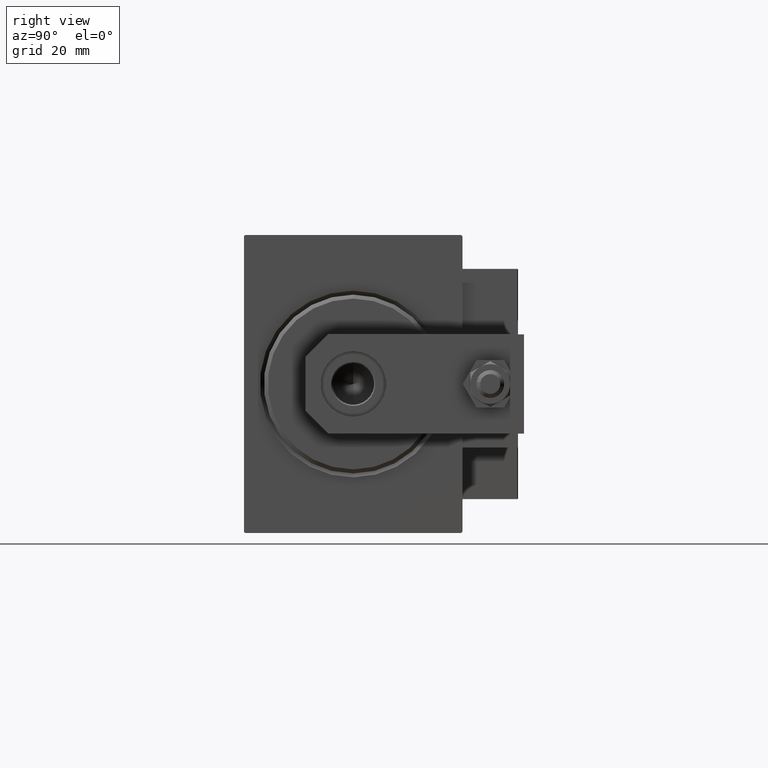
[diagram: clean part render]
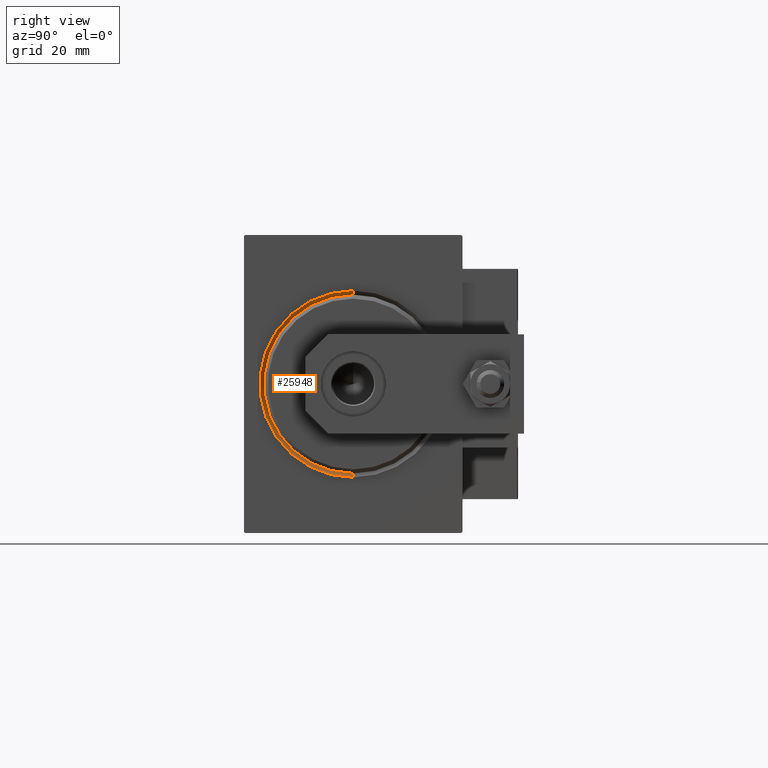
[diagram: same view with one face highlighted and labeled with its STEP entity id]
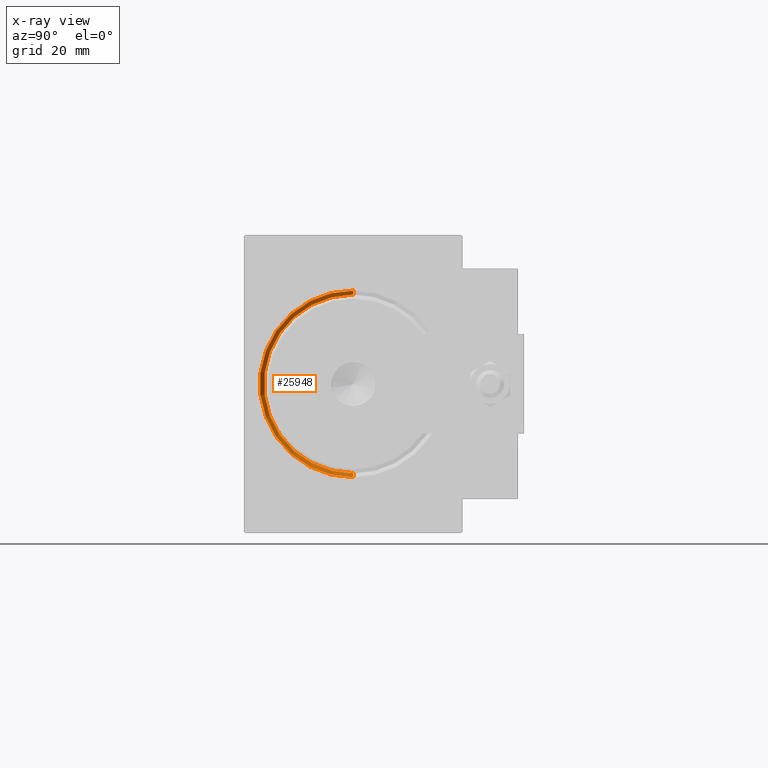
[diagram: x-ray of the same camera — body ghosted, the highlighted face saturated]
A machine part, right view. The second image highlights one B-rep face of the part: STEP entity #25948.
The next image is the same camera in x-ray: the body ghosted, the highlighted face saturated — about 0% of this face is hidden behind the body in this view.
In plain terms, the highlighted conical surface has half-angle 45 deg.
Its self-contained STEP definition (entity closure, byte-faithful):
#1055 = ORIENTED_EDGE ( 'NONE', *, *, #19250, .F. ) ;
#5131 = VERTEX_POINT ( 'NONE', #8692 ) ;
#5615 = VERTEX_POINT ( 'NONE', #48613 ) ;
#7937 = AXIS2_PLACEMENT_3D ( 'NONE', #34377, #41700, #26818 ) ;
#8201 = DIRECTION ( 'NONE',  ( -0.7071067811865474617, 8.659560562354932858E-17, -0.7071067811865474617 ) ) ;
#8692 = CARTESIAN_POINT ( 'NONE',  ( 0.000000000000000000, 0.000000000000000000, 23.50000000000000355 ) ) ;
#9246 = DIRECTION ( 'NONE',  ( 0.000000000000000000, 0.000000000000000000, 1.000000000000000000 ) ) ;
#9625 = VECTOR ( 'NONE', #8201, 1000.000000000000114 ) ;
#13294 = FACE_OUTER_BOUND ( 'NONE', #19712, .T. ) ;
#16115 = DIRECTION ( 'NONE',  ( 0.000000000000000000, 0.000000000000000000, -1.000000000000000000 ) ) ;
#16272 = DIRECTION ( 'NONE',  ( -0.7071067811865474617, 0.000000000000000000, 0.7071067811865474617 ) ) ;
#16606 = CARTESIAN_POINT ( 'NONE',  ( 0.000000000000000000, 0.000000000000000000, 0.000000000000000000 ) ) ;
#16663 = CIRCLE ( 'NONE', #25495, 23.50000000000000355 ) ;
#19250 = EDGE_CURVE ( 'NONE', #5615, #34331, #29652, .T. ) ;
#19712 = EDGE_LOOP ( 'NONE', ( #44983, #1055, #39053, #44291 ) ) ;
#20172 = VECTOR ( 'NONE', #16272, 1000.000000000000114 ) ;
#21593 = CARTESIAN_POINT ( 'NONE',  ( 1.000000000000000888, 0.000000000000000000, 0.000000000000000000 ) ) ;
#23339 = CONICAL_SURFACE ( 'NONE', #24126, 22.50000000000000355, 0.7853981633974482790 ) ;
#24126 = AXIS2_PLACEMENT_3D ( 'NONE', #21593, #40733, #9246 ) ;
#24149 = DIRECTION ( 'NONE',  ( 1.000000000000000000, 0.000000000000000000, 0.000000000000000000 ) ) ;
#25495 = AXIS2_PLACEMENT_3D ( 'NONE', #16606, #24149, #16115 ) ;
#25948 = ADVANCED_FACE ( 'NONE', ( #13294 ), #23339, .F. ) ;
#26130 = EDGE_CURVE ( 'NONE', #34331, #27854, #46996, .T. ) ;
#26818 = DIRECTION ( 'NONE',  ( 0.000000000000000000, 0.000000000000000000, -1.000000000000000000 ) ) ;
#27854 = VERTEX_POINT ( 'NONE', #38194 ) ;
#29652 = CIRCLE ( 'NONE', #7937, 22.50000000000000355 ) ;
#32541 = EDGE_CURVE ( 'NONE', #27854, #5131, #16663, .T. ) ;
#34331 = VERTEX_POINT ( 'NONE', #34338 ) ;
#34338 = CARTESIAN_POINT ( 'NONE',  ( 1.000000000000000888, 2.755455298081545172E-15, -22.50000000000000355 ) ) ;
#34377 = CARTESIAN_POINT ( 'NONE',  ( 1.000000000000000888, 0.000000000000000000, 0.000000000000000000 ) ) ;
#34656 = CARTESIAN_POINT ( 'NONE',  ( 1.000000000000000888, 2.755455298081545172E-15, -22.50000000000000355 ) ) ;
#38194 = CARTESIAN_POINT ( 'NONE',  ( 0.000000000000000000, 2.877919977996280715E-15, -23.50000000000000355 ) ) ;
#39053 = ORIENTED_EDGE ( 'NONE', *, *, #41082, .T. ) ;
#40733 = DIRECTION ( 'NONE',  ( -1.000000000000000000, 0.000000000000000000, 0.000000000000000000 ) ) ;
#41082 = EDGE_CURVE ( 'NONE', #5615, #5131, #46491, .T. ) ;
#41700 = DIRECTION ( 'NONE',  ( -1.000000000000000000, 0.000000000000000000, 0.000000000000000000 ) ) ;
#42713 = CARTESIAN_POINT ( 'NONE',  ( 1.000000000000000888, 0.000000000000000000, 22.50000000000000355 ) ) ;
#44291 = ORIENTED_EDGE ( 'NONE', *, *, #32541, .F. ) ;
#44983 = ORIENTED_EDGE ( 'NONE', *, *, #26130, .F. ) ;
#46491 = LINE ( 'NONE', #42713, #20172 ) ;
#46996 = LINE ( 'NONE', #34656, #9625 ) ;
#48613 = CARTESIAN_POINT ( 'NONE',  ( 1.000000000000000888, 0.000000000000000000, 22.50000000000000355 ) ) ;